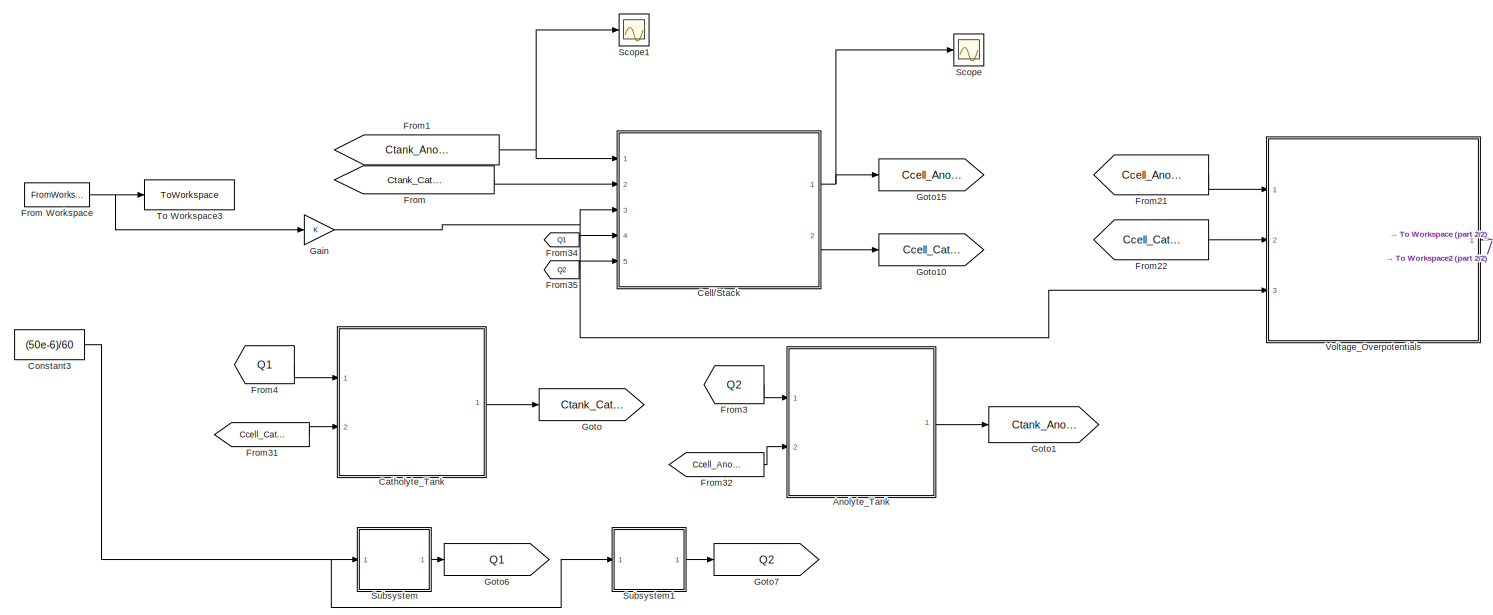
[diagram: root canvas - part 1/2, most of the canvas]
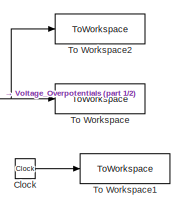
[diagram: root canvas - part 2/2, middle right region]
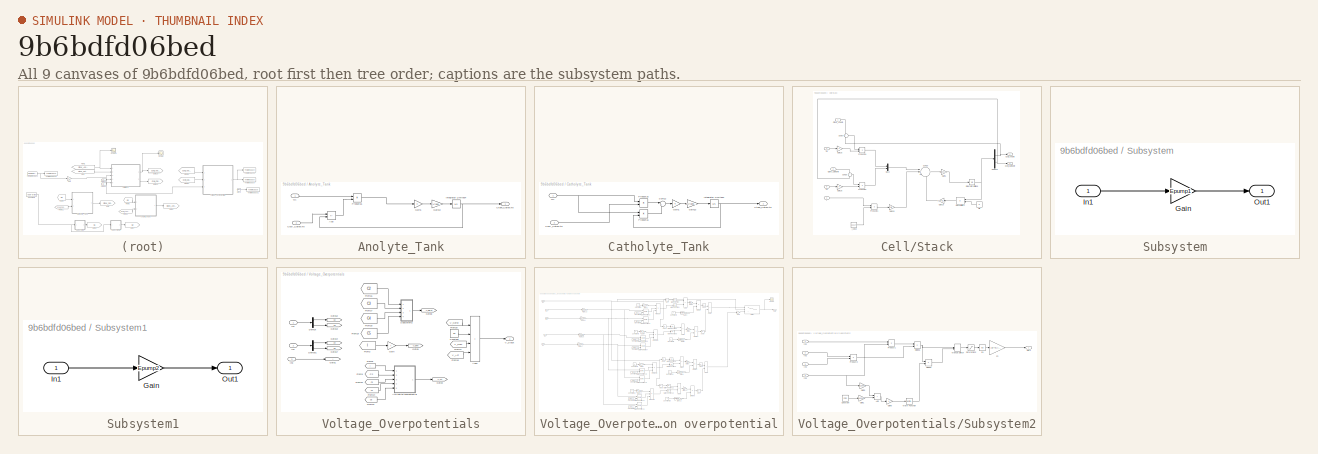
[diagram: thumbnail index - all 9 canvases of the model, root first then tree order]
MODEL slx_9b6bdfd06bed
KIND model
CONFIG AbsTol = auto
CONFIG EnableMultiTasking = off
CONFIG FixedStep = auto
CONFIG MaxStep = auto
CONFIG MinStep = auto
CONFIG RelTol = 1e-3
CONFIG SampleTimeConstraint = Unconstrained
CONFIG SolverName = VariableStepAuto
CONFIG StartTime = 0.0
CONFIG StopTime = 6000
BLOCK [SubSystem] Anolyte_Tank
  Ports = [2, 1]
  RequestExecContextInheritance = off
BLOCK [Sum] Anolyte_Tank/Add
  IconShape = rectangular
  Inputs = +-
  Ports = [2, 1]
BLOCK [Inport] Anolyte_Tank/Ccell_Catholyte
  Port = 2
BLOCK [Outport] Anolyte_Tank/Ctank_Catholyte
  VectorParamsAs1DForOutWhenUnconnected = off
BLOCK [Gain] Anolyte_Tank/Gain1
BLOCK [Gain] Anolyte_Tank/Gain13
  Gain = 1/Vtank_Anolyte
BLOCK [Integrator] Anolyte_Tank/Integrator Limited4
  InitialCondition = [Ctankini2 Ctankini3]
  LimitOutput = on
  LowerSaturationLimit = 0.001
  Ports = [1, 1]
  UpperSaturationLimit = 400
BLOCK [Product] Anolyte_Tank/Product15
  Ports = [2, 1]
BLOCK [Inport] Anolyte_Tank/Q1
BLOCK [SubSystem] Catholyte_Tank
  Ports = [2, 1]
  RequestExecContextInheritance = off
BLOCK [Inport] Catholyte_Tank/Ccell_Catholyte
  Port = 2
BLOCK [Outport] Catholyte_Tank/Ctank_Catholyte
  VectorParamsAs1DForOutWhenUnconnected = off
BLOCK [Gain] Catholyte_Tank/Gain1
BLOCK [Gain] Catholyte_Tank/Gain13
  Gain = 1/Vtank_Catholyte
BLOCK [Integrator] Catholyte_Tank/Integrator Limited4
  InitialCondition = [Ctankini4 Ctankini5]
  LimitOutput = on
  LowerSaturationLimit = 0.001
  Ports = [1, 1]
  UpperSaturationLimit = 400
BLOCK [Product] Catholyte_Tank/Product15
  Ports = [2, 1]
BLOCK [Product] Catholyte_Tank/Product16
  Ports = [2, 1]
BLOCK [Inport] Catholyte_Tank/Q1
BLOCK [Sum] Catholyte_Tank/Sum12
  Inputs = |+-
  Ports = [2, 1]
BLOCK [SubSystem] Cell//Stack
  Ports = [5, 2]
  RequestExecContextInheritance = off
BLOCK [Outport] Cell//Stack/Ccell_Anolyte
  VectorParamsAs1DForOutWhenUnconnected = off
BLOCK [Outport] Cell//Stack/Ccell_Catholyte
  Port = 2
  VectorParamsAs1DForOutWhenUnconnected = off
BLOCK [Inport] Cell//Stack/Ctank_Anolyte
BLOCK [Inport] Cell//Stack/Ctank_Catholyte
  Port = 2
BLOCK [Demux] Cell//Stack/Demux6
  Outputs = 2
  Ports = [1, 2]
BLOCK [Gain] Cell//Stack/Gain1
  Gain = 2/(Vcell*N)
  Multiplication = Matrix(K*u)
BLOCK [Gain] Cell//Stack/Gain15
BLOCK [Gain] Cell//Stack/Gain16
BLOCK [Gain] Cell//Stack/Gain18
  Gain = 1*N*(S/d)
BLOCK [Gain] Cell//Stack/Gain20
  Gain = N/F
BLOCK [Inport] Cell//Stack/I 
  Port = 3
BLOCK [Constant] Cell//Stack/I_VEC2
  Value = [1 -1 -1 1]'
BLOCK [Integrator] Cell//Stack/Integrator Limited6
  InitialCondition = [Ccellini2 Ccellini3 Ccellini4 Ccellini5]
  LimitOutput = on
  LowerSaturationLimit = 0.001
  Ports = [1, 1]
  UpperSaturationLimit = 400
BLOCK [Product] Cell//Stack/Matrix Multiply2
  Multiplication = Matrix(*)
  Ports = [2, 1]
BLOCK [Mux] Cell//Stack/Mux2
  DisplayOption = bar
  Inputs = 2
  Ports = [2, 1]
BLOCK [Product] Cell//Stack/Product19
  Ports = [2, 1]
BLOCK [Product] Cell//Stack/Product20
  Ports = [2, 1]
BLOCK [Product] Cell//Stack/Product21
  Ports = [2, 1]
BLOCK [Inport] Cell//Stack/Q1
  Port = 4
BLOCK [Inport] Cell//Stack/Q2
  Port = 5
BLOCK [Sum] Cell//Stack/Sum14
  Inputs = +-
  Ports = [2, 1]
BLOCK [Sum] Cell//Stack/Sum15
  Inputs = +-
  Ports = [2, 1]
BLOCK [Sum] Cell//Stack/Sum16
  Inputs = |+++
  Ports = [3, 1]
BLOCK [Constant] Cell//Stack/dif1
  Value = D
BLOCK [Clock] Clock
BLOCK [Constant] Constant3
  Value = (50e-6)/60
BLOCK [From] From
  GotoTag = Ctank_Catholyte
BLOCK [FromWorkspace] From Workspace
  VariableName = Current_In
BLOCK [From] From1
  GotoTag = Ctank_Anolyte
BLOCK [From] From21
  GotoTag = Ccell_Anolyte
BLOCK [From] From22
  GotoTag = Ccell_Catholyte
BLOCK [From] From3
  GotoTag = Q2
BLOCK [From] From31
  GotoTag = Ccell_Catholyte
BLOCK [From] From32
  GotoTag = Ccell_Anolyte
BLOCK [From] From34
  GotoTag = Q1
BLOCK [From] From35
  GotoTag = Q2
BLOCK [From] From4
  GotoTag = Q1
BLOCK [Gain] Gain
BLOCK [Goto] Goto
  GotoTag = Ctank_Catholyte
BLOCK [Goto] Goto1
  GotoTag = Ctank_Anolyte
BLOCK [Goto] Goto10
  GotoTag = Ccell_Catholyte
BLOCK [Goto] Goto15
  GotoTag = Ccell_Anolyte
BLOCK [Goto] Goto6
  GotoTag = Q1
BLOCK [Goto] Goto7
  GotoTag = Q2
BLOCK [Scope] Scope
  Floating = off
  NumInputPorts = 1
  Ports = [1]
  ScopeSpecificationString = Simulink.scopes.TimeScopeBlockCfg('CurrentConfiguration', extmgr.ConfigurationSet(extmgr.Configuration('Core','General UI',true),extmgr.Configuration('Core','Source UI',true),extmgr.Configuration('Sources','WiredSimulink',true,'DataLoggingVariableName','ScopeData1'),extmgr.Configuration('Visuals','Time Domain',true,'SerializedDisplays',{struct('MinYLimReal','-49.99887','MaxYLimReal','449.99987','Y...<+1444ch>
BLOCK [Scope] Scope1
  Floating = off
  NumInputPorts = 1
  Ports = [1]
  ScopeSpecificationString = Simulink.scopes.TimeScopeBlockCfg('CurrentConfiguration', extmgr.ConfigurationSet(extmgr.Configuration('Core','General UI',true),extmgr.Configuration('Core','Source UI',true),extmgr.Configuration('Sources','WiredSimulink',true,'DataLoggingVariableName','ScopeData2'),extmgr.Configuration('Visuals','Time Domain',true,'SerializedDisplays',{struct('MinYLimReal','-43.75','MaxYLimReal','443.75','YLabelR...<+1382ch>
BLOCK [SubSystem] Subsystem
  Ports = [1, 1]
  RequestExecContextInheritance = off
BLOCK [Gain] Subsystem/Gain
  Gain = Epump1
BLOCK [Inport] Subsystem/In1
BLOCK [Outport] Subsystem/Out1
BLOCK [SubSystem] Subsystem1
  Ports = [1, 1]
  RequestExecContextInheritance = off
BLOCK [Gain] Subsystem1/Gain
  Gain = Epump2
BLOCK [Inport] Subsystem1/In1
BLOCK [Outport] Subsystem1/Out1
BLOCK [ToWorkspace] To Workspace
  FixptAsFi = on
  MaxDataPoints = inf
  Ports = [1]
  SampleTime = 1.0187
  Save2DSignal = 2-D array (concatenate along first dimension)
  VariableName = Vestimated
BLOCK [ToWorkspace] To Workspace1
  FixptAsFi = on
  MaxDataPoints = inf
  Ports = [1]
  SampleTime = 1
  Save2DSignal = 2-D array (concatenate along first dimension)
  VariableName = t_1
BLOCK [ToWorkspace] To Workspace2
  FixptAsFi = on
  MaxDataPoints = inf
  Ports = [1]
  SampleTime = 1
  Save2DSignal = 2-D array (concatenate along first dimension)
  VariableName = Vestimated1
BLOCK [ToWorkspace] To Workspace3
  FixptAsFi = on
  MaxDataPoints = inf
  Ports = [1]
  SampleTime = 1.0
  Save2DSignal = 2-D array (concatenate along first dimension)
  VariableName = current
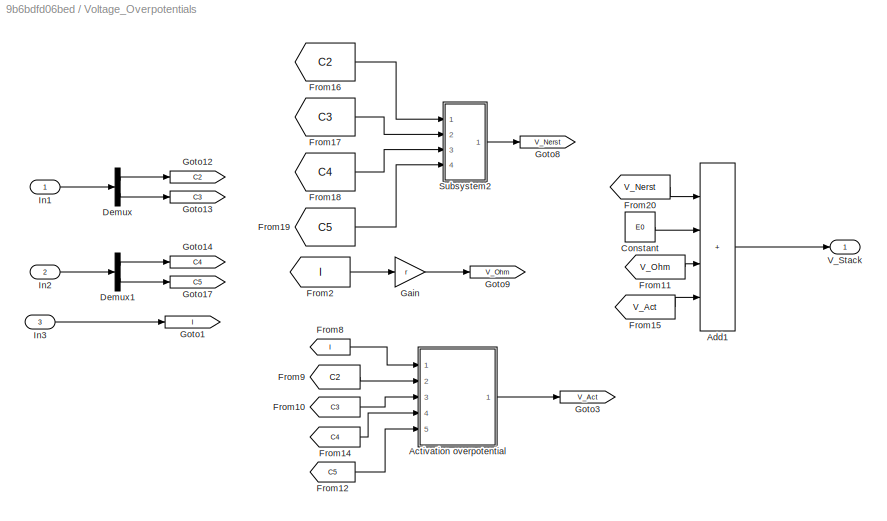
BLOCK [SubSystem] Voltage_Overpotentials
  Ports = [3, 1]
  RequestExecContextInheritance = off
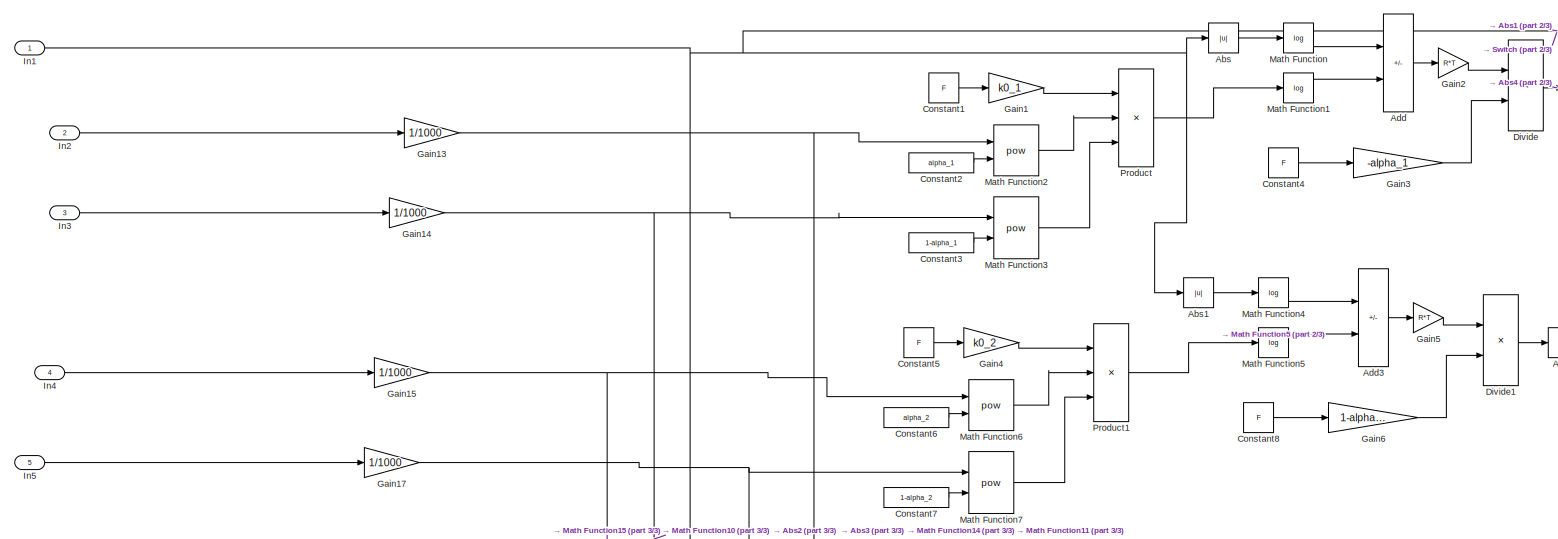
[diagram: Voltage_Overpotentials/Activation overpotential - part 1/3, top center region]
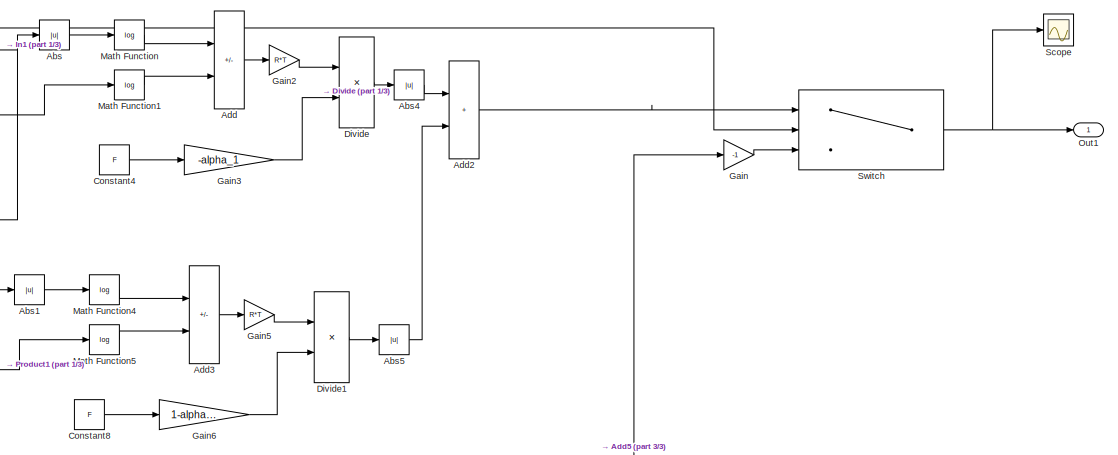
[diagram: Voltage_Overpotentials/Activation overpotential - part 2/3, top right region]
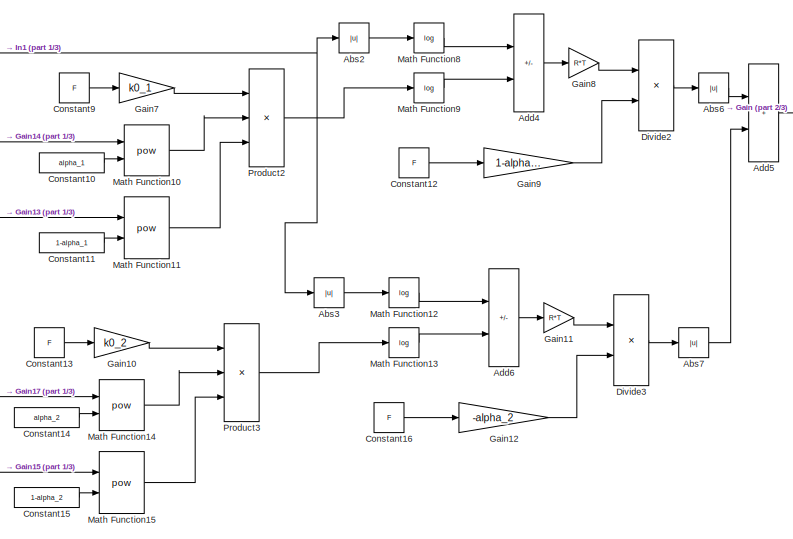
[diagram: Voltage_Overpotentials/Activation overpotential - part 3/3, bottom center region]
BLOCK [SubSystem] Voltage_Overpotentials/Activation overpotential
  Ports = [5, 1]
  RequestExecContextInheritance = off
BLOCK [Abs] Voltage_Overpotentials/Activation overpotential/Abs
  SaturateOnIntegerOverflow = off
BLOCK [Abs] Voltage_Overpotentials/Activation overpotential/Abs1
  SaturateOnIntegerOverflow = off
BLOCK [Abs] Voltage_Overpotentials/Activation overpotential/Abs2
  SaturateOnIntegerOverflow = off
BLOCK [Abs] Voltage_Overpotentials/Activation overpotential/Abs3
  SaturateOnIntegerOverflow = off
BLOCK [Abs] Voltage_Overpotentials/Activation overpotential/Abs4
  SaturateOnIntegerOverflow = off
BLOCK [Abs] Voltage_Overpotentials/Activation overpotential/Abs5
  SaturateOnIntegerOverflow = off
BLOCK [Abs] Voltage_Overpotentials/Activation overpotential/Abs6
  SaturateOnIntegerOverflow = off
BLOCK [Abs] Voltage_Overpotentials/Activation overpotential/Abs7
  SaturateOnIntegerOverflow = off
BLOCK [Sum] Voltage_Overpotentials/Activation overpotential/Add
  IconShape = rectangular
  Inputs = +-
  Ports = [2, 1]
BLOCK [Sum] Voltage_Overpotentials/Activation overpotential/Add2
  IconShape = rectangular
  Ports = [2, 1]
BLOCK [Sum] Voltage_Overpotentials/Activation overpotential/Add3
  IconShape = rectangular
  Inputs = +-
  Ports = [2, 1]
BLOCK [Sum] Voltage_Overpotentials/Activation overpotential/Add4
  IconShape = rectangular
  Inputs = +-
  Ports = [2, 1]
BLOCK [Sum] Voltage_Overpotentials/Activation overpotential/Add5
  IconShape = rectangular
  Ports = [2, 1]
BLOCK [Sum] Voltage_Overpotentials/Activation overpotential/Add6
  IconShape = rectangular
  Inputs = +-
  Ports = [2, 1]
BLOCK [Constant] Voltage_Overpotentials/Activation overpotential/Constant1
  Value = F
BLOCK [Constant] Voltage_Overpotentials/Activation overpotential/Constant10
  Value = alpha_1
BLOCK [Constant] Voltage_Overpotentials/Activation overpotential/Constant11
  Value = 1-alpha_1
BLOCK [Constant] Voltage_Overpotentials/Activation overpotential/Constant12
  Value = F
BLOCK [Constant] Voltage_Overpotentials/Activation overpotential/Constant13
  Value = F
BLOCK [Constant] Voltage_Overpotentials/Activation overpotential/Constant14
  Value = alpha_2
BLOCK [Constant] Voltage_Overpotentials/Activation overpotential/Constant15
  Value = 1-alpha_2
BLOCK [Constant] Voltage_Overpotentials/Activation overpotential/Constant16
  Value = F
BLOCK [Constant] Voltage_Overpotentials/Activation overpotential/Constant2
  Value = alpha_1
BLOCK [Constant] Voltage_Overpotentials/Activation overpotential/Constant3
  Value = 1-alpha_1
BLOCK [Constant] Voltage_Overpotentials/Activation overpotential/Constant4
  Value = F
BLOCK [Constant] Voltage_Overpotentials/Activation overpotential/Constant5
  Value = F
BLOCK [Constant] Voltage_Overpotentials/Activation overpotential/Constant6
  Value = alpha_2
BLOCK [Constant] Voltage_Overpotentials/Activation overpotential/Constant7
  Value = 1-alpha_2
BLOCK [Constant] Voltage_Overpotentials/Activation overpotential/Constant8
  Value = F
BLOCK [Constant] Voltage_Overpotentials/Activation overpotential/Constant9
  Value = F
BLOCK [Product] Voltage_Overpotentials/Activation overpotential/Divide
  Inputs = */
  Ports = [2, 1]
BLOCK [Product] Voltage_Overpotentials/Activation overpotential/Divide1
  Inputs = */
  Ports = [2, 1]
BLOCK [Product] Voltage_Overpotentials/Activation overpotential/Divide2
  Inputs = */
  Ports = [2, 1]
BLOCK [Product] Voltage_Overpotentials/Activation overpotential/Divide3
  Inputs = */
  Ports = [2, 1]
BLOCK [Gain] Voltage_Overpotentials/Activation overpotential/Gain
  Gain = -1
BLOCK [Gain] Voltage_Overpotentials/Activation overpotential/Gain1
  Gain = k0_1
BLOCK [Gain] Voltage_Overpotentials/Activation overpotential/Gain10
  Gain = k0_2
BLOCK [Gain] Voltage_Overpotentials/Activation overpotential/Gain11
  Gain = R*T
BLOCK [Gain] Voltage_Overpotentials/Activation overpotential/Gain12
  Gain = -alpha_2
BLOCK [Gain] Voltage_Overpotentials/Activation overpotential/Gain13
  Gain = 1/1000
BLOCK [Gain] Voltage_Overpotentials/Activation overpotential/Gain14
  Gain = 1/1000
BLOCK [Gain] Voltage_Overpotentials/Activation overpotential/Gain15
  Gain = 1/1000
BLOCK [Gain] Voltage_Overpotentials/Activation overpotential/Gain17
  Gain = 1/1000
BLOCK [Gain] Voltage_Overpotentials/Activation overpotential/Gain2
  Gain = R*T
BLOCK [Gain] Voltage_Overpotentials/Activation overpotential/Gain3
  Gain = -alpha_1
BLOCK [Gain] Voltage_Overpotentials/Activation overpotential/Gain4
  Gain = k0_2
BLOCK [Gain] Voltage_Overpotentials/Activation overpotential/Gain5
  Gain = R*T
BLOCK [Gain] Voltage_Overpotentials/Activation overpotential/Gain6
  Gain = 1-alpha_2
BLOCK [Gain] Voltage_Overpotentials/Activation overpotential/Gain7
  Gain = k0_1
BLOCK [Gain] Voltage_Overpotentials/Activation overpotential/Gain8
  Gain = R*T
BLOCK [Gain] Voltage_Overpotentials/Activation overpotential/Gain9
  Gain = 1-alpha_1
BLOCK [Inport] Voltage_Overpotentials/Activation overpotential/In1
BLOCK [Inport] Voltage_Overpotentials/Activation overpotential/In2
  Port = 2
BLOCK [Inport] Voltage_Overpotentials/Activation overpotential/In3
  Port = 3
BLOCK [Inport] Voltage_Overpotentials/Activation overpotential/In4
  Port = 4
BLOCK [Inport] Voltage_Overpotentials/Activation overpotential/In5
  Port = 5
BLOCK [Math] Voltage_Overpotentials/Activation overpotential/Math Function
  Operator = log
  Ports = [1, 1]
BLOCK [Math] Voltage_Overpotentials/Activation overpotential/Math Function1
  Operator = log
  Ports = [1, 1]
BLOCK [Math] Voltage_Overpotentials/Activation overpotential/Math Function10
  Operator = pow
  Ports = [2, 1]
BLOCK [Math] Voltage_Overpotentials/Activation overpotential/Math Function11
  Operator = pow
  Ports = [2, 1]
BLOCK [Math] Voltage_Overpotentials/Activation overpotential/Math Function12
  Operator = log
  Ports = [1, 1]
BLOCK [Math] Voltage_Overpotentials/Activation overpotential/Math Function13
  Operator = log
  Ports = [1, 1]
BLOCK [Math] Voltage_Overpotentials/Activation overpotential/Math Function14
  Operator = pow
  Ports = [2, 1]
BLOCK [Math] Voltage_Overpotentials/Activation overpotential/Math Function15
  Operator = pow
  Ports = [2, 1]
BLOCK [Math] Voltage_Overpotentials/Activation overpotential/Math Function2
  Operator = pow
  Ports = [2, 1]
BLOCK [Math] Voltage_Overpotentials/Activation overpotential/Math Function3
  Operator = pow
  Ports = [2, 1]
BLOCK [Math] Voltage_Overpotentials/Activation overpotential/Math Function4
  Operator = log
  Ports = [1, 1]
BLOCK [Math] Voltage_Overpotentials/Activation overpotential/Math Function5
  Operator = log
  Ports = [1, 1]
BLOCK [Math] Voltage_Overpotentials/Activation overpotential/Math Function6
  Operator = pow
  Ports = [2, 1]
BLOCK [Math] Voltage_Overpotentials/Activation overpotential/Math Function7
  Operator = pow
  Ports = [2, 1]
BLOCK [Math] Voltage_Overpotentials/Activation overpotential/Math Function8
  Operator = log
  Ports = [1, 1]
BLOCK [Math] Voltage_Overpotentials/Activation overpotential/Math Function9
  Operator = log
  Ports = [1, 1]
BLOCK [Outport] Voltage_Overpotentials/Activation overpotential/Out1
BLOCK [Product] Voltage_Overpotentials/Activation overpotential/Product
  Inputs = 3
  Ports = [3, 1]
BLOCK [Product] Voltage_Overpotentials/Activation overpotential/Product1
  Inputs = 3
  Ports = [3, 1]
BLOCK [Product] Voltage_Overpotentials/Activation overpotential/Product2
  Inputs = 3
  Ports = [3, 1]
BLOCK [Product] Voltage_Overpotentials/Activation overpotential/Product3
  Inputs = 3
  Ports = [3, 1]
BLOCK [Scope] Voltage_Overpotentials/Activation overpotential/Scope
  Floating = off
  NumInputPorts = 1
  Ports = [1]
  ScopeSpecificationString = Simulink.scopes.TimeScopeBlockCfg('CurrentConfiguration', extmgr.ConfigurationSet(extmgr.Configuration('Core','General UI',true),extmgr.Configuration('Core','Source UI',true),extmgr.Configuration('Sources','WiredSimulink',true),extmgr.Configuration('Visuals','Time Domain',true,'SerializedDisplays',{struct('MinYLimReal','-3.84425','MaxYLimReal','3.70778','YLabelReal','','MinYLimMag','0.00000','MaxY...<+1351ch>
BLOCK [Switch] Voltage_Overpotentials/Activation overpotential/Switch
  Criteria = u2 > Threshold
  InputSameDT = off
  SaturateOnIntegerOverflow = off
BLOCK [Sum] Voltage_Overpotentials/Add1
  IconShape = rectangular
  Inputs = ++++
  Ports = [4, 1]
BLOCK [Constant] Voltage_Overpotentials/Constant
  Value = E0
BLOCK [Demux] Voltage_Overpotentials/Demux
  Outputs = 2
  Ports = [1, 2]
BLOCK [Demux] Voltage_Overpotentials/Demux1
  Outputs = 2
  Ports = [1, 2]
BLOCK [From] Voltage_Overpotentials/From10
  GotoTag = C3
BLOCK [From] Voltage_Overpotentials/From11
  GotoTag = V_Ohm
BLOCK [From] Voltage_Overpotentials/From12
  GotoTag = C5
BLOCK [From] Voltage_Overpotentials/From14
  GotoTag = C4
BLOCK [From] Voltage_Overpotentials/From15
  GotoTag = V_Act
BLOCK [From] Voltage_Overpotentials/From16
  GotoTag = C2
BLOCK [From] Voltage_Overpotentials/From17
  GotoTag = C3
BLOCK [From] Voltage_Overpotentials/From18
  GotoTag = C4
BLOCK [From] Voltage_Overpotentials/From19
  GotoTag = C5
BLOCK [From] Voltage_Overpotentials/From2
  GotoTag = I
BLOCK [From] Voltage_Overpotentials/From20
  GotoTag = V_Nerst
BLOCK [From] Voltage_Overpotentials/From8
  GotoTag = I
BLOCK [From] Voltage_Overpotentials/From9
  GotoTag = C2
BLOCK [Gain] Voltage_Overpotentials/Gain
  Gain = r
BLOCK [Goto] Voltage_Overpotentials/Goto1
  GotoTag = I
BLOCK [Goto] Voltage_Overpotentials/Goto12
  GotoTag = C2
BLOCK [Goto] Voltage_Overpotentials/Goto13
  GotoTag = C3
BLOCK [Goto] Voltage_Overpotentials/Goto14
  GotoTag = C4
BLOCK [Goto] Voltage_Overpotentials/Goto17
  GotoTag = C5
BLOCK [Goto] Voltage_Overpotentials/Goto3
  GotoTag = V_Act
BLOCK [Goto] Voltage_Overpotentials/Goto8
  GotoTag = V_Nerst
BLOCK [Goto] Voltage_Overpotentials/Goto9
  GotoTag = V_Ohm
BLOCK [Inport] Voltage_Overpotentials/In1
BLOCK [Inport] Voltage_Overpotentials/In2
  Port = 2
BLOCK [Inport] Voltage_Overpotentials/In3
  Port = 3
BLOCK [SubSystem] Voltage_Overpotentials/Subsystem2
  Ports = [4, 1]
  RequestExecContextInheritance = off
BLOCK [Sum] Voltage_Overpotentials/Subsystem2/Add
  IconShape = rectangular
  Ports = [2, 1]
BLOCK [Constant] Voltage_Overpotentials/Subsystem2/Constant
  Value = Chini
BLOCK [Product] Voltage_Overpotentials/Subsystem2/Divide5
  Inputs = */
  Ports = [2, 1]
BLOCK [Product] Voltage_Overpotentials/Subsystem2/Divide6
  Inputs = **
  Ports = [2, 1]
BLOCK [Gain] Voltage_Overpotentials/Subsystem2/F2
  Gain = (R*T)/(F)
BLOCK [Gain] Voltage_Overpotentials/Subsystem2/Gain1
  Gain = 1/1000
  Multiplication = Matrix(K*u)
BLOCK [Gain] Voltage_Overpotentials/Subsystem2/Gain5
  Gain = 1/1000
  Multiplication = Matrix(K*u)
BLOCK [Gain] Voltage_Overpotentials/Subsystem2/Gain6
  Multiplication = Matrix(K*u)
BLOCK [Inport] Voltage_Overpotentials/Subsystem2/In1
BLOCK [Inport] Voltage_Overpotentials/Subsystem2/In2
  Port = 2
BLOCK [Inport] Voltage_Overpotentials/Subsystem2/In3
  Port = 3
BLOCK [Inport] Voltage_Overpotentials/Subsystem2/In4
  Port = 4
BLOCK [ManualSwitch] Voltage_Overpotentials/Subsystem2/Manual Switch
  CurrentSetting = 0
BLOCK [Math] Voltage_Overpotentials/Subsystem2/Math Function
  Operator = magnitude^2
  Ports = [1, 1]
BLOCK [Outport] Voltage_Overpotentials/Subsystem2/Out1
BLOCK [Product] Voltage_Overpotentials/Subsystem2/Product1
  Ports = [2, 1]
BLOCK [Product] Voltage_Overpotentials/Subsystem2/Product2
  Ports = [2, 1]
BLOCK [Saturate] Voltage_Overpotentials/Subsystem2/Saturation2
  LowerLimit = 1e-5
  UpperLimit = 1e5
BLOCK [Math] Voltage_Overpotentials/Subsystem2/ln1
  Operator = log
  Ports = [1, 1]
  SignedPower = on
BLOCK [Outport] Voltage_Overpotentials/V_Stack
LINE Anolyte_Tank/Add:1 -> Anolyte_Tank/Product15:2
LINE Anolyte_Tank/Ccell_Catholyte:1 -> Anolyte_Tank/Add:1
LINE Anolyte_Tank/Gain13:1 -> Anolyte_Tank/Integrator Limited4:1
LINE Anolyte_Tank/Gain1:1 -> Anolyte_Tank/Gain13:1
NET Anolyte_Tank/Integrator Limited4:1 -> Anolyte_Tank/Add:2, Anolyte_Tank/Ctank_Catholyte:1
LINE Anolyte_Tank/Product15:1 -> Anolyte_Tank/Gain1:1
LINE Anolyte_Tank/Q1:1 -> Anolyte_Tank/Product15:1
LINE Anolyte_Tank:1 -> Goto1:1
LINE Catholyte_Tank/Ccell_Catholyte:1 -> Catholyte_Tank/Product15:2
LINE Catholyte_Tank/Gain13:1 -> Catholyte_Tank/Integrator Limited4:1
LINE Catholyte_Tank/Gain1:1 -> Catholyte_Tank/Gain13:1
NET Catholyte_Tank/Integrator Limited4:1 -> Catholyte_Tank/Ctank_Catholyte:1, Catholyte_Tank/Product16:2
LINE Catholyte_Tank/Product15:1 -> Catholyte_Tank/Sum12:1
LINE Catholyte_Tank/Product16:1 -> Catholyte_Tank/Sum12:2
NET Catholyte_Tank/Q1:1 -> Catholyte_Tank/Product15:1, Catholyte_Tank/Product16:1
LINE Catholyte_Tank/Sum12:1 -> Catholyte_Tank/Gain1:1
LINE Catholyte_Tank:1 -> Goto:1
LINE Cell//Stack/Ctank_Anolyte:1 -> Cell//Stack/Sum14:1
LINE Cell//Stack/Ctank_Catholyte:1 -> Cell//Stack/Sum15:1
NET Cell//Stack/Demux6:1 -> Cell//Stack/Ccell_Anolyte:1, Cell//Stack/Sum14:2
NET Cell//Stack/Demux6:2 -> Cell//Stack/Ccell_Catholyte:1, Cell//Stack/Sum15:2
LINE Cell//Stack/Gain15:1 -> Cell//Stack/Product19:2
LINE Cell//Stack/Gain16:1 -> Cell//Stack/Product20:2
LINE Cell//Stack/Gain18:1 -> Cell//Stack/Sum16:3
LINE Cell//Stack/Gain1:1 -> Cell//Stack/Integrator Limited6:1
LINE Cell//Stack/Gain20:1 -> Cell//Stack/Sum16:2
LINE Cell//Stack/I :1 -> Cell//Stack/Product21:1
LINE Cell//Stack/I_VEC2:1 -> Cell//Stack/Product21:2
NET Cell//Stack/Integrator Limited6:1 -> Cell//Stack/Demux6:1, Cell//Stack/Matrix Multiply2:1
LINE Cell//Stack/Matrix Multiply2:1 -> Cell//Stack/Gain18:1
LINE Cell//Stack/Mux2:1 -> Cell//Stack/Sum16:1
LINE Cell//Stack/Product19:1 -> Cell//Stack/Mux2:1
LINE Cell//Stack/Product20:1 -> Cell//Stack/Mux2:2
LINE Cell//Stack/Product21:1 -> Cell//Stack/Gain20:1
LINE Cell//Stack/Q1:1 -> Cell//Stack/Gain15:1
LINE Cell//Stack/Q2:1 -> Cell//Stack/Gain16:1
LINE Cell//Stack/Sum14:1 -> Cell//Stack/Product19:1
LINE Cell//Stack/Sum15:1 -> Cell//Stack/Product20:1
LINE Cell//Stack/Sum16:1 -> Cell//Stack/Gain1:1
LINE Cell//Stack/dif1:1 -> Cell//Stack/Matrix Multiply2:2
NET Cell//Stack:1 -> Goto15:1, Scope:1
LINE Cell//Stack:2 -> Goto10:1
LINE Clock:1 -> To Workspace1:1
NET Constant3:1 -> Subsystem1:1, Subsystem:1
NET From Workspace:1 -> Gain:1, To Workspace3:1
NET From1:1 -> Cell//Stack:1, Scope1:1
LINE From21:1 -> Voltage_Overpotentials:1
LINE From22:1 -> Voltage_Overpotentials:2
LINE From31:1 -> Catholyte_Tank:2
LINE From32:1 -> Anolyte_Tank:2
LINE From34:1 -> Cell//Stack:4
LINE From35:1 -> Cell//Stack:5
LINE From3:1 -> Anolyte_Tank:1
LINE From4:1 -> Catholyte_Tank:1
LINE From:1 -> Cell//Stack:2
NET Gain:1 -> Cell//Stack:3, Voltage_Overpotentials:3
LINE Subsystem/Gain:1 -> Subsystem/Out1:1
LINE Subsystem/In1:1 -> Subsystem/Gain:1
LINE Subsystem1/Gain:1 -> Subsystem1/Out1:1
LINE Subsystem1/In1:1 -> Subsystem1/Gain:1
LINE Subsystem1:1 -> Goto7:1
LINE Subsystem:1 -> Goto6:1
LINE Voltage_Overpotentials/Activation overpotential/Abs1:1 -> Voltage_Overpotentials/Activation overpotential/Math Function4:1
LINE Voltage_Overpotentials/Activation overpotential/Abs2:1 -> Voltage_Overpotentials/Activation overpotential/Math Function8:1
LINE Voltage_Overpotentials/Activation overpotential/Abs3:1 -> Voltage_Overpotentials/Activation overpotential/Math Function12:1
LINE Voltage_Overpotentials/Activation overpotential/Abs4:1 -> Voltage_Overpotentials/Activation overpotential/Add2:1
LINE Voltage_Overpotentials/Activation overpotential/Abs5:1 -> Voltage_Overpotentials/Activation overpotential/Add2:2
LINE Voltage_Overpotentials/Activation overpotential/Abs6:1 -> Voltage_Overpotentials/Activation overpotential/Add5:1
LINE Voltage_Overpotentials/Activation overpotential/Abs7:1 -> Voltage_Overpotentials/Activation overpotential/Add5:2
LINE Voltage_Overpotentials/Activation overpotential/Abs:1 -> Voltage_Overpotentials/Activation overpotential/Math Function:1
LINE Voltage_Overpotentials/Activation overpotential/Add2:1 -> Voltage_Overpotentials/Activation overpotential/Switch:1
LINE Voltage_Overpotentials/Activation overpotential/Add3:1 -> Voltage_Overpotentials/Activation overpotential/Gain5:1
LINE Voltage_Overpotentials/Activation overpotential/Add4:1 -> Voltage_Overpotentials/Activation overpotential/Gain8:1
LINE Voltage_Overpotentials/Activation overpotential/Add5:1 -> Voltage_Overpotentials/Activation overpotential/Gain:1
LINE Voltage_Overpotentials/Activation overpotential/Add6:1 -> Voltage_Overpotentials/Activation overpotential/Gain11:1
LINE Voltage_Overpotentials/Activation overpotential/Add:1 -> Voltage_Overpotentials/Activation overpotential/Gain2:1
LINE Voltage_Overpotentials/Activation overpotential/Constant10:1 -> Voltage_Overpotentials/Activation overpotential/Math Function10:2
LINE Voltage_Overpotentials/Activation overpotential/Constant11:1 -> Voltage_Overpotentials/Activation overpotential/Math Function11:2
LINE Voltage_Overpotentials/Activation overpotential/Constant12:1 -> Voltage_Overpotentials/Activation overpotential/Gain9:1
LINE Voltage_Overpotentials/Activation overpotential/Constant13:1 -> Voltage_Overpotentials/Activation overpotential/Gain10:1
LINE Voltage_Overpotentials/Activation overpotential/Constant14:1 -> Voltage_Overpotentials/Activation overpotential/Math Function14:2
LINE Voltage_Overpotentials/Activation overpotential/Constant15:1 -> Voltage_Overpotentials/Activation overpotential/Math Function15:2
LINE Voltage_Overpotentials/Activation overpotential/Constant16:1 -> Voltage_Overpotentials/Activation overpotential/Gain12:1
LINE Voltage_Overpotentials/Activation overpotential/Constant1:1 -> Voltage_Overpotentials/Activation overpotential/Gain1:1
LINE Voltage_Overpotentials/Activation overpotential/Constant2:1 -> Voltage_Overpotentials/Activation overpotential/Math Function2:2
LINE Voltage_Overpotentials/Activation overpotential/Constant3:1 -> Voltage_Overpotentials/Activation overpotential/Math Function3:2
LINE Voltage_Overpotentials/Activation overpotential/Constant4:1 -> Voltage_Overpotentials/Activation overpotential/Gain3:1
LINE Voltage_Overpotentials/Activation overpotential/Constant5:1 -> Voltage_Overpotentials/Activation overpotential/Gain4:1
LINE Voltage_Overpotentials/Activation overpotential/Constant6:1 -> Voltage_Overpotentials/Activation overpotential/Math Function6:2
LINE Voltage_Overpotentials/Activation overpotential/Constant7:1 -> Voltage_Overpotentials/Activation overpotential/Math Function7:2
LINE Voltage_Overpotentials/Activation overpotential/Constant8:1 -> Voltage_Overpotentials/Activation overpotential/Gain6:1
LINE Voltage_Overpotentials/Activation overpotential/Constant9:1 -> Voltage_Overpotentials/Activation overpotential/Gain7:1
LINE Voltage_Overpotentials/Activation overpotential/Divide1:1 -> Voltage_Overpotentials/Activation overpotential/Abs5:1
LINE Voltage_Overpotentials/Activation overpotential/Divide2:1 -> Voltage_Overpotentials/Activation overpotential/Abs6:1
LINE Voltage_Overpotentials/Activation overpotential/Divide3:1 -> Voltage_Overpotentials/Activation overpotential/Abs7:1
LINE Voltage_Overpotentials/Activation overpotential/Divide:1 -> Voltage_Overpotentials/Activation overpotential/Abs4:1
LINE Voltage_Overpotentials/Activation overpotential/Gain10:1 -> Voltage_Overpotentials/Activation overpotential/Product3:1
LINE Voltage_Overpotentials/Activation overpotential/Gain11:1 -> Voltage_Overpotentials/Activation overpotential/Divide3:1
LINE Voltage_Overpotentials/Activation overpotential/Gain12:1 -> Voltage_Overpotentials/Activation overpotential/Divide3:2
NET Voltage_Overpotentials/Activation overpotential/Gain13:1 -> Voltage_Overpotentials/Activation overpotential/Math Function11:1, Voltage_Overpotentials/Activation overpotential/Math Function2:1
NET Voltage_Overpotentials/Activation overpotential/Gain14:1 -> Voltage_Overpotentials/Activation overpotential/Math Function10:1, Voltage_Overpotentials/Activation overpotential/Math Function3:1
NET Voltage_Overpotentials/Activation overpotential/Gain15:1 -> Voltage_Overpotentials/Activation overpotential/Math Function15:1, Voltage_Overpotentials/Activation overpotential/Math Function6:1
NET Voltage_Overpotentials/Activation overpotential/Gain17:1 -> Voltage_Overpotentials/Activation overpotential/Math Function14:1, Voltage_Overpotentials/Activation overpotential/Math Function7:1
LINE Voltage_Overpotentials/Activation overpotential/Gain1:1 -> Voltage_Overpotentials/Activation overpotential/Product:1
LINE Voltage_Overpotentials/Activation overpotential/Gain2:1 -> Voltage_Overpotentials/Activation overpotential/Divide:1
LINE Voltage_Overpotentials/Activation overpotential/Gain3:1 -> Voltage_Overpotentials/Activation overpotential/Divide:2
LINE Voltage_Overpotentials/Activation overpotential/Gain4:1 -> Voltage_Overpotentials/Activation overpotential/Product1:1
LINE Voltage_Overpotentials/Activation overpotential/Gain5:1 -> Voltage_Overpotentials/Activation overpotential/Divide1:1
LINE Voltage_Overpotentials/Activation overpotential/Gain6:1 -> Voltage_Overpotentials/Activation overpotential/Divide1:2
LINE Voltage_Overpotentials/Activation overpotential/Gain7:1 -> Voltage_Overpotentials/Activation overpotential/Product2:1
LINE Voltage_Overpotentials/Activation overpotential/Gain8:1 -> Voltage_Overpotentials/Activation overpotential/Divide2:1
LINE Voltage_Overpotentials/Activation overpotential/Gain9:1 -> Voltage_Overpotentials/Activation overpotential/Divide2:2
LINE Voltage_Overpotentials/Activation overpotential/Gain:1 -> Voltage_Overpotentials/Activation overpotential/Switch:3
NET Voltage_Overpotentials/Activation overpotential/In1:1 -> Voltage_Overpotentials/Activation overpotential/Abs1:1, Voltage_Overpotentials/Activation overpotential/Abs2:1, Voltage_Overpotentials/Activation overpotential/Abs3:1, Voltage_Overpotentials/Activation overpotential/Abs:1, Voltage_Overpotentials/Activation overpotential/Switch:2
LINE Voltage_Overpotentials/Activation overpotential/In2:1 -> Voltage_Overpotentials/Activation overpotential/Gain13:1
LINE Voltage_Overpotentials/Activation overpotential/In3:1 -> Voltage_Overpotentials/Activation overpotential/Gain14:1
LINE Voltage_Overpotentials/Activation overpotential/In4:1 -> Voltage_Overpotentials/Activation overpotential/Gain15:1
LINE Voltage_Overpotentials/Activation overpotential/In5:1 -> Voltage_Overpotentials/Activation overpotential/Gain17:1
LINE Voltage_Overpotentials/Activation overpotential/Math Function10:1 -> Voltage_Overpotentials/Activation overpotential/Product2:2
LINE Voltage_Overpotentials/Activation overpotential/Math Function11:1 -> Voltage_Overpotentials/Activation overpotential/Product2:3
LINE Voltage_Overpotentials/Activation overpotential/Math Function12:1 -> Voltage_Overpotentials/Activation overpotential/Add6:1
LINE Voltage_Overpotentials/Activation overpotential/Math Function13:1 -> Voltage_Overpotentials/Activation overpotential/Add6:2
LINE Voltage_Overpotentials/Activation overpotential/Math Function14:1 -> Voltage_Overpotentials/Activation overpotential/Product3:2
LINE Voltage_Overpotentials/Activation overpotential/Math Function15:1 -> Voltage_Overpotentials/Activation overpotential/Product3:3
LINE Voltage_Overpotentials/Activation overpotential/Math Function1:1 -> Voltage_Overpotentials/Activation overpotential/Add:2
LINE Voltage_Overpotentials/Activation overpotential/Math Function2:1 -> Voltage_Overpotentials/Activation overpotential/Product:2
LINE Voltage_Overpotentials/Activation overpotential/Math Function3:1 -> Voltage_Overpotentials/Activation overpotential/Product:3
LINE Voltage_Overpotentials/Activation overpotential/Math Function4:1 -> Voltage_Overpotentials/Activation overpotential/Add3:1
LINE Voltage_Overpotentials/Activation overpotential/Math Function5:1 -> Voltage_Overpotentials/Activation overpotential/Add3:2
LINE Voltage_Overpotentials/Activation overpotential/Math Function6:1 -> Voltage_Overpotentials/Activation overpotential/Product1:2
LINE Voltage_Overpotentials/Activation overpotential/Math Function7:1 -> Voltage_Overpotentials/Activation overpotential/Product1:3
LINE Voltage_Overpotentials/Activation overpotential/Math Function8:1 -> Voltage_Overpotentials/Activation overpotential/Add4:1
LINE Voltage_Overpotentials/Activation overpotential/Math Function9:1 -> Voltage_Overpotentials/Activation overpotential/Add4:2
LINE Voltage_Overpotentials/Activation overpotential/Math Function:1 -> Voltage_Overpotentials/Activation overpotential/Add:1
LINE Voltage_Overpotentials/Activation overpotential/Product1:1 -> Voltage_Overpotentials/Activation overpotential/Math Function5:1
LINE Voltage_Overpotentials/Activation overpotential/Product2:1 -> Voltage_Overpotentials/Activation overpotential/Math Function9:1
LINE Voltage_Overpotentials/Activation overpotential/Product3:1 -> Voltage_Overpotentials/Activation overpotential/Math Function13:1
LINE Voltage_Overpotentials/Activation overpotential/Product:1 -> Voltage_Overpotentials/Activation overpotential/Math Function1:1
NET Voltage_Overpotentials/Activation overpotential/Switch:1 -> Voltage_Overpotentials/Activation overpotential/Out1:1, Voltage_Overpotentials/Activation overpotential/Scope:1
LINE Voltage_Overpotentials/Activation overpotential:1 -> Voltage_Overpotentials/Goto3:1
LINE Voltage_Overpotentials/Add1:1 -> Voltage_Overpotentials/V_Stack:1
LINE Voltage_Overpotentials/Constant:1 -> Voltage_Overpotentials/Add1:2
LINE Voltage_Overpotentials/Demux1:1 -> Voltage_Overpotentials/Goto14:1
LINE Voltage_Overpotentials/Demux1:2 -> Voltage_Overpotentials/Goto17:1
LINE Voltage_Overpotentials/Demux:1 -> Voltage_Overpotentials/Goto12:1
LINE Voltage_Overpotentials/Demux:2 -> Voltage_Overpotentials/Goto13:1
LINE Voltage_Overpotentials/From10:1 -> Voltage_Overpotentials/Activation overpotential:3
LINE Voltage_Overpotentials/From11:1 -> Voltage_Overpotentials/Add1:3
LINE Voltage_Overpotentials/From12:1 -> Voltage_Overpotentials/Activation overpotential:5
LINE Voltage_Overpotentials/From14:1 -> Voltage_Overpotentials/Activation overpotential:4
LINE Voltage_Overpotentials/From15:1 -> Voltage_Overpotentials/Add1:4
LINE Voltage_Overpotentials/From16:1 -> Voltage_Overpotentials/Subsystem2:1
LINE Voltage_Overpotentials/From17:1 -> Voltage_Overpotentials/Subsystem2:2
LINE Voltage_Overpotentials/From18:1 -> Voltage_Overpotentials/Subsystem2:3
LINE Voltage_Overpotentials/From19:1 -> Voltage_Overpotentials/Subsystem2:4
LINE Voltage_Overpotentials/From20:1 -> Voltage_Overpotentials/Add1:1
LINE Voltage_Overpotentials/From2:1 -> Voltage_Overpotentials/Gain:1
LINE Voltage_Overpotentials/From8:1 -> Voltage_Overpotentials/Activation overpotential:1
LINE Voltage_Overpotentials/From9:1 -> Voltage_Overpotentials/Activation overpotential:2
LINE Voltage_Overpotentials/Gain:1 -> Voltage_Overpotentials/Goto9:1
LINE Voltage_Overpotentials/In1:1 -> Voltage_Overpotentials/Demux:1
LINE Voltage_Overpotentials/In2:1 -> Voltage_Overpotentials/Demux1:1
LINE Voltage_Overpotentials/In3:1 -> Voltage_Overpotentials/Goto1:1
LINE Voltage_Overpotentials/Subsystem2/Add:1 -> Voltage_Overpotentials/Subsystem2/Gain6:1
LINE Voltage_Overpotentials/Subsystem2/Constant:1 -> Voltage_Overpotentials/Subsystem2/Gain1:1
NET Voltage_Overpotentials/Subsystem2/Divide5:1 -> Voltage_Overpotentials/Subsystem2/Divide6:1, Voltage_Overpotentials/Subsystem2/Manual Switch:1
LINE Voltage_Overpotentials/Subsystem2/Divide6:1 -> Voltage_Overpotentials/Subsystem2/Manual Switch:2
LINE Voltage_Overpotentials/Subsystem2/F2:1 -> Voltage_Overpotentials/Subsystem2/Out1:1
LINE Voltage_Overpotentials/Subsystem2/Gain1:1 -> Voltage_Overpotentials/Subsystem2/Add:2
LINE Voltage_Overpotentials/Subsystem2/Gain5:1 -> Voltage_Overpotentials/Subsystem2/Add:1
LINE Voltage_Overpotentials/Subsystem2/Gain6:1 -> Voltage_Overpotentials/Subsystem2/Math Function:1
LINE Voltage_Overpotentials/Subsystem2/In1:1 -> Voltage_Overpotentials/Subsystem2/Product1:1
LINE Voltage_Overpotentials/Subsystem2/In2:1 -> Voltage_Overpotentials/Subsystem2/Product2:1
LINE Voltage_Overpotentials/Subsystem2/In3:1 -> Voltage_Overpotentials/Subsystem2/Product2:2
NET Voltage_Overpotentials/Subsystem2/In4:1 -> Voltage_Overpotentials/Subsystem2/Gain5:1, Voltage_Overpotentials/Subsystem2/Product1:2
LINE Voltage_Overpotentials/Subsystem2/Manual Switch:1 -> Voltage_Overpotentials/Subsystem2/Saturation2:1
LINE Voltage_Overpotentials/Subsystem2/Math Function:1 -> Voltage_Overpotentials/Subsystem2/Divide6:2
LINE Voltage_Overpotentials/Subsystem2/Product1:1 -> Voltage_Overpotentials/Subsystem2/Divide5:1
LINE Voltage_Overpotentials/Subsystem2/Product2:1 -> Voltage_Overpotentials/Subsystem2/Divide5:2
LINE Voltage_Overpotentials/Subsystem2/Saturation2:1 -> Voltage_Overpotentials/Subsystem2/ln1:1
LINE Voltage_Overpotentials/Subsystem2/ln1:1 -> Voltage_Overpotentials/Subsystem2/F2:1
LINE Voltage_Overpotentials/Subsystem2:1 -> Voltage_Overpotentials/Goto8:1
NET Voltage_Overpotentials:1 -> To Workspace2:1, To Workspace:1
note: NET lines group one-source signal fan-out (src -> all destinations, sorted); 1:1 wires keep LINE
